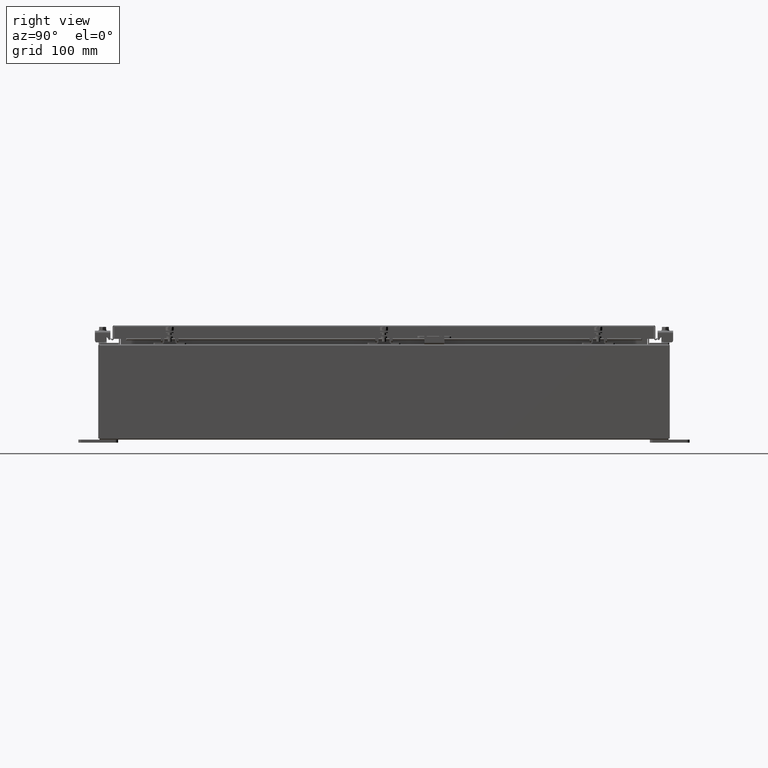
[diagram: clean part render]
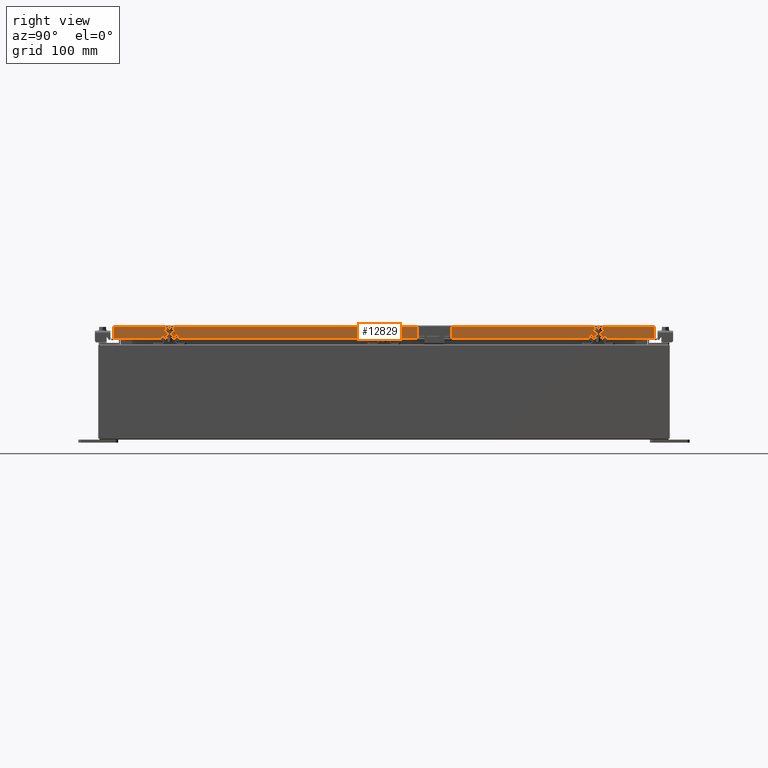
[diagram: same view with one face highlighted and labeled with its STEP entity id]
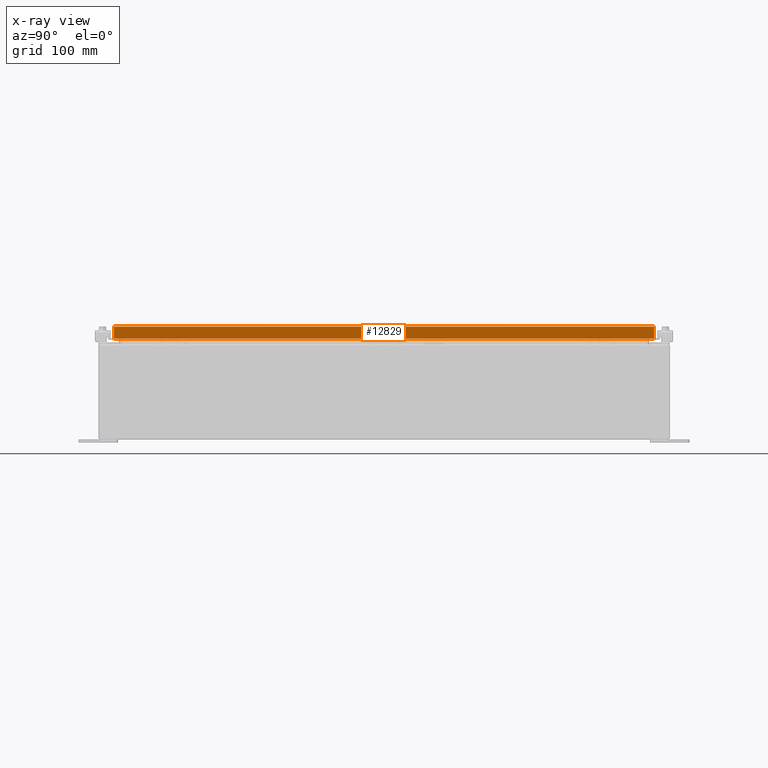
[diagram: x-ray of the same camera — body ghosted, the highlighted face saturated]
A machine part, right view. The second image highlights one B-rep face of the part: STEP entity #12829.
The next image is the same camera in x-ray: the body ghosted, the highlighted face saturated — about 0% of this face is hidden behind the body in this view.
In plain terms, the highlighted planar face has unit normal (1, 0, 0).
Its self-contained STEP definition (entity closure, byte-faithful):
#3 = ORIENTED_EDGE ( 'NONE', *, *, #8588, .F. ) ;
#802 = LINE ( 'NONE', #15299, #33799 ) ;
#1136 = VECTOR ( 'NONE', #8797, 39.37007874015748100 ) ;
#1537 = VERTEX_POINT ( 'NONE', #7582 ) ;
#3618 = CARTESIAN_POINT ( 'NONE',  ( 11.07799999999999600, 17.00515786437627600, -0.08770000000000007000 ) ) ;
#3762 = CARTESIAN_POINT ( 'NONE',  ( 11.07799999999998900, 16.25515786437628300, -0.8500000000000016400 ) ) ;
#4448 = LINE ( 'NONE', #3762, #28684 ) ;
#5373 = VERTEX_POINT ( 'NONE', #38042 ) ;
#5949 = VERTEX_POINT ( 'NONE', #31727 ) ;
#6056 = EDGE_CURVE ( 'NONE', #18295, #5373, #20782, .T. ) ;
#6164 = CARTESIAN_POINT ( 'NONE',  ( 11.07799999999998900, -16.25515786437626200, -0.8500000000000016400 ) ) ;
#6201 = FACE_OUTER_BOUND ( 'NONE', #16727, .T. ) ;
#7109 = DIRECTION ( 'NONE',  ( 0.0000000000000000000, -1.000000000000000000, 0.0000000000000000000 ) ) ;
#7582 = CARTESIAN_POINT ( 'NONE',  ( 11.07799999999999800, 17.00515786437628000, -0.8499999999999996400 ) ) ;
#7844 = CARTESIAN_POINT ( 'NONE',  ( 11.07799999999999600, 0.0000000000000000000, 3.148837674004377800E-014 ) ) ;
#8242 = CARTESIAN_POINT ( 'NONE',  ( 11.07799999999999800, -17.00515786437626200, -0.8499999999999996400 ) ) ;
#8588 = EDGE_CURVE ( 'NONE', #17517, #32091, #36327, .T. ) ;
#8797 = DIRECTION ( 'NONE',  ( 0.0000000000000000000, -1.000000000000000000, 0.0000000000000000000 ) ) ;
#9040 = VECTOR ( 'NONE', #42572, 39.37007874015748100 ) ;
#10042 = EDGE_CURVE ( 'NONE', #1537, #18295, #33688, .T. ) ;
#10152 = CARTESIAN_POINT ( 'NONE',  ( 11.07799999999999800, -17.09399999999999800, -0.8499999999999996400 ) ) ;
#10789 = ORIENTED_EDGE ( 'NONE', *, *, #10042, .T. ) ;
#11836 = DIRECTION ( 'NONE',  ( -2.818880942772360500E-015, -6.982962677686269100E-015, 1.000000000000000000 ) ) ;
#12829 = ADVANCED_FACE ( 'NONE', ( #6201 ), #30904, .T. ) ;
#13246 = VECTOR ( 'NONE', #13440, 39.37007874015748100 ) ;
#13440 = DIRECTION ( 'NONE',  ( 0.0000000000000000000, -1.000000000000000000, 0.0000000000000000000 ) ) ;
#15078 = ORIENTED_EDGE ( 'NONE', *, *, #20825, .F. ) ;
#15299 = CARTESIAN_POINT ( 'NONE',  ( 11.07799999999999600, -17.00515786437626500, -0.07469999999999978000 ) ) ;
#16727 = EDGE_LOOP ( 'NONE', ( #15078, #3, #23908, #41863, #10789, #37422 ) ) ;
#17517 = VERTEX_POINT ( 'NONE', #6164 ) ;
#18295 = VERTEX_POINT ( 'NONE', #3618 ) ;
#20481 = EDGE_CURVE ( 'NONE', #1537, #5949, #39313, .T. ) ;
#20525 = EDGE_CURVE ( 'NONE', #5949, #17517, #4448, .T. ) ;
#20782 = LINE ( 'NONE', #25165, #1136 ) ;
#20825 = EDGE_CURVE ( 'NONE', #32091, #5373, #802, .T. ) ;
#21118 = DIRECTION ( 'NONE',  ( 2.818880942772360100E-015, 0.0000000000000000000, -1.000000000000000000 ) ) ;
#21612 = AXIS2_PLACEMENT_3D ( 'NONE', #7844, #40720, #21118 ) ;
#22929 = CARTESIAN_POINT ( 'NONE',  ( 11.07799999999999800, -17.09399999999999800, -0.8499999999999996400 ) ) ;
#23908 = ORIENTED_EDGE ( 'NONE', *, *, #20525, .F. ) ;
#25165 = CARTESIAN_POINT ( 'NONE',  ( 11.07799999999999600, 0.0000000000000000000, -0.08770000000000007000 ) ) ;
#28684 = VECTOR ( 'NONE', #7109, 39.37007874015748100 ) ;
#30904 = PLANE ( 'NONE',  #21612 ) ;
#31727 = CARTESIAN_POINT ( 'NONE',  ( 11.07799999999998900, 16.25515786437628000, -0.8500000000000016400 ) ) ;
#32091 = VERTEX_POINT ( 'NONE', #8242 ) ;
#33688 = LINE ( 'NONE', #34097, #41322 ) ;
#33799 = VECTOR ( 'NONE', #11836, 39.37007874015748100 ) ;
#34097 = CARTESIAN_POINT ( 'NONE',  ( 11.07799999999999600, 17.00515786437627600, 1.502347594351464400E-013 ) ) ;
#36327 = LINE ( 'NONE', #22929, #9040 ) ;
#37422 = ORIENTED_EDGE ( 'NONE', *, *, #6056, .T. ) ;
#37423 = DIRECTION ( 'NONE',  ( -2.818880942772360500E-015, -6.982962677686269100E-015, 1.000000000000000000 ) ) ;
#38042 = CARTESIAN_POINT ( 'NONE',  ( 11.07799999999999600, -17.00515786437626500, -0.08770000000000007000 ) ) ;
#39313 = LINE ( 'NONE', #10152, #13246 ) ;
#40720 = DIRECTION ( 'NONE',  ( 1.000000000000000000, 0.0000000000000000000, 2.818880942772360100E-015 ) ) ;
#41322 = VECTOR ( 'NONE', #37423, 39.37007874015748100 ) ;
#41863 = ORIENTED_EDGE ( 'NONE', *, *, #20481, .F. ) ;
#42572 = DIRECTION ( 'NONE',  ( 0.0000000000000000000, -1.000000000000000000, 0.0000000000000000000 ) ) ;